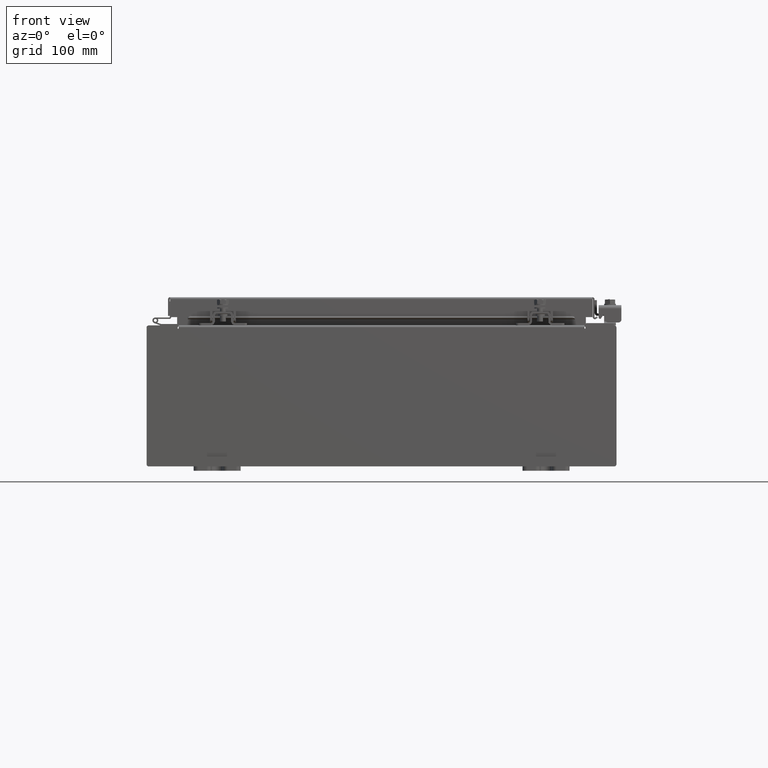
[diagram: clean part render]
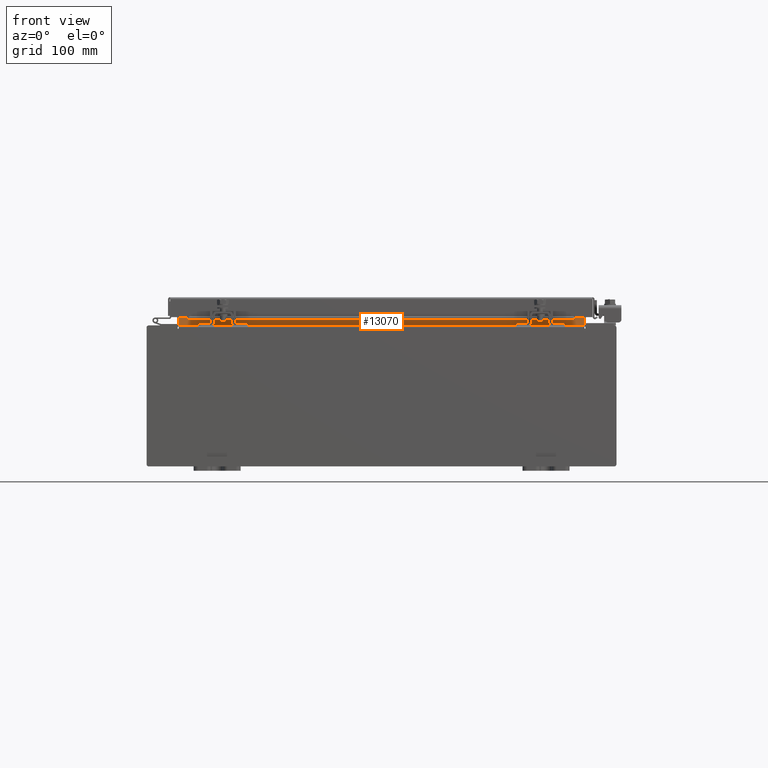
[diagram: same view with one face highlighted and labeled with its STEP entity id]
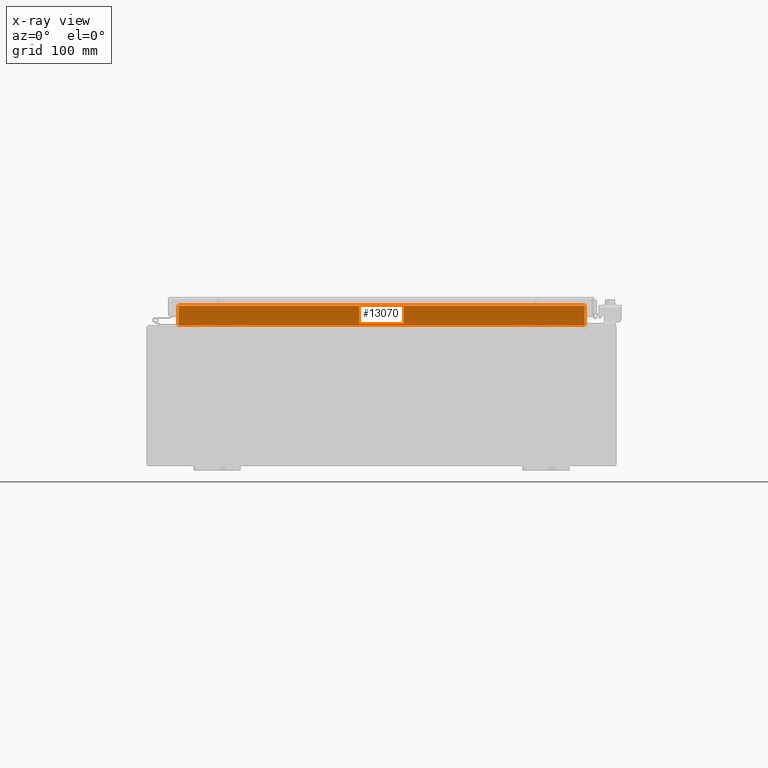
[diagram: x-ray of the same camera — body ghosted, the highlighted face saturated]
A machine part, front view. The second image highlights one B-rep face of the part: STEP entity #13070.
The next image is the same camera in x-ray: the body ghosted, the highlighted face saturated — about 0% of this face is hidden behind the body in this view.
In plain terms, the highlighted planar face has unit normal (0, -1, 0).
Its self-contained STEP definition (entity closure, byte-faithful):
#175 = VERTEX_POINT ( 'NONE', #10971 ) ;
#1376 = ORIENTED_EDGE ( 'NONE', *, *, #15766, .F. ) ;
#1524 = CARTESIAN_POINT ( 'NONE',  ( 8.637200000000000000, -1.300300000000000000, 3.837600000000005000 ) ) ;
#1556 = ORIENTED_EDGE ( 'NONE', *, *, #11382, .F. ) ;
#2363 = VECTOR ( 'NONE', #17487, 39.37007874015748100 ) ;
#2458 = CARTESIAN_POINT ( 'NONE',  ( 8.637199999999996400, -1.300299999999999800, 3.013000000000004800 ) ) ;
#2540 = FACE_OUTER_BOUND ( 'NONE', #15290, .T. ) ;
#3817 = DIRECTION ( 'NONE',  ( -1.000000000000000000, -0.0000000000000000000, -0.0000000000000000000 ) ) ;
#3826 = PLANE ( 'NONE',  #15505 ) ;
#4643 = VERTEX_POINT ( 'NONE', #26205 ) ;
#5762 = CARTESIAN_POINT ( 'NONE',  ( -8.637200000000000000, -1.300299999999999800, 3.013000000000005200 ) ) ;
#6913 = VECTOR ( 'NONE', #10599, 39.37007874015748100 ) ;
#8397 = DIRECTION ( 'NONE',  ( 0.0000000000000000000, -0.0000000000000000000, 1.000000000000000000 ) ) ;
#9148 = LINE ( 'NONE', #16945, #2363 ) ;
#10599 = DIRECTION ( 'NONE',  ( -0.0000000000000000000, -0.0000000000000000000, -1.000000000000000000 ) ) ;
#10971 = CARTESIAN_POINT ( 'NONE',  ( 8.637200000000000000, -1.300299999999999800, 3.837600000000005000 ) ) ;
#11382 = EDGE_CURVE ( 'NONE', #4643, #22030, #12251, .T. ) ;
#12251 = LINE ( 'NONE', #12871, #6913 ) ;
#12736 = VECTOR ( 'NONE', #21670, 39.37007874015748100 ) ;
#12871 = CARTESIAN_POINT ( 'NONE',  ( -8.637200000000000000, -1.300299999999999800, 3.000000000000005300 ) ) ;
#13070 = ADVANCED_FACE ( 'NONE', ( #2540 ), #3826, .T. ) ;
#13233 = CARTESIAN_POINT ( 'NONE',  ( -8.637200000000000000, -1.300299999999999800, 3.013000000000004800 ) ) ;
#15290 = EDGE_LOOP ( 'NONE', ( #1556, #1376, #20039, #29492 ) ) ;
#15505 = AXIS2_PLACEMENT_3D ( 'NONE', #19723, #22017, #8397 ) ;
#15766 = EDGE_CURVE ( 'NONE', #175, #4643, #29484, .T. ) ;
#16945 = CARTESIAN_POINT ( 'NONE',  ( 8.637200000000000000, -1.300299999999999800, 3.925300000000005300 ) ) ;
#17487 = DIRECTION ( 'NONE',  ( -0.0000000000000000000, -0.0000000000000000000, 1.000000000000000000 ) ) ;
#19723 = CARTESIAN_POINT ( 'NONE',  ( 0.0000000000000000000, -1.300299999999999800, 0.0000000000000000000 ) ) ;
#20039 = ORIENTED_EDGE ( 'NONE', *, *, #28835, .F. ) ;
#20061 = VERTEX_POINT ( 'NONE', #2458 ) ;
#21670 = DIRECTION ( 'NONE',  ( 1.000000000000000000, 0.0000000000000000000, -6.325772226333218300E-017 ) ) ;
#22013 = VECTOR ( 'NONE', #3817, 39.37007874015748100 ) ;
#22017 = DIRECTION ( 'NONE',  ( 0.0000000000000000000, 1.000000000000000000, 0.0000000000000000000 ) ) ;
#22030 = VERTEX_POINT ( 'NONE', #13233 ) ;
#23369 = LINE ( 'NONE', #5762, #12736 ) ;
#26205 = CARTESIAN_POINT ( 'NONE',  ( -8.637200000000000000, -1.300300000000000000, 3.837600000000005000 ) ) ;
#28210 = EDGE_CURVE ( 'NONE', #22030, #20061, #23369, .T. ) ;
#28835 = EDGE_CURVE ( 'NONE', #20061, #175, #9148, .T. ) ;
#29484 = LINE ( 'NONE', #1524, #22013 ) ;
#29492 = ORIENTED_EDGE ( 'NONE', *, *, #28210, .F. ) ;